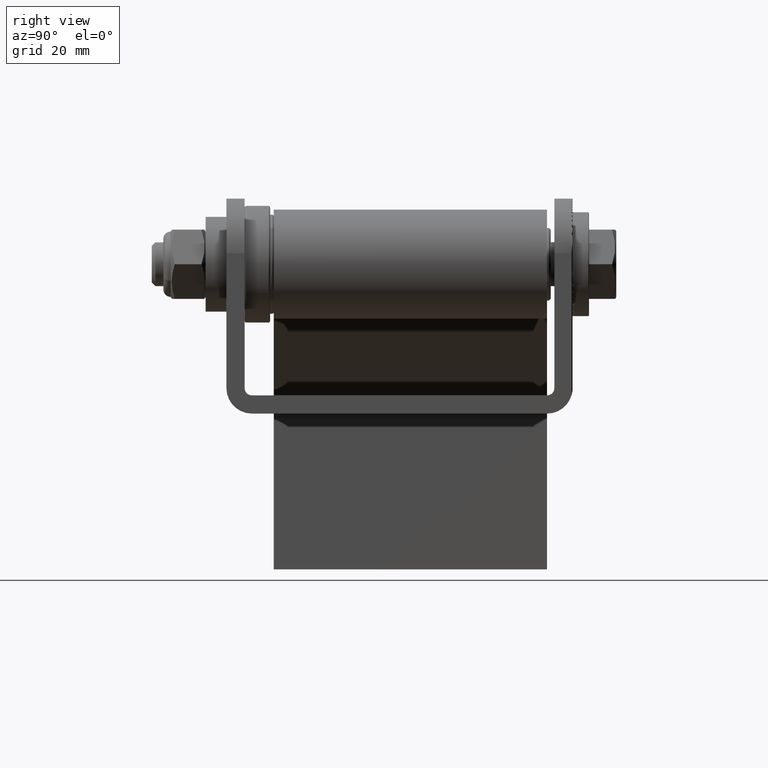
[diagram: clean part render]
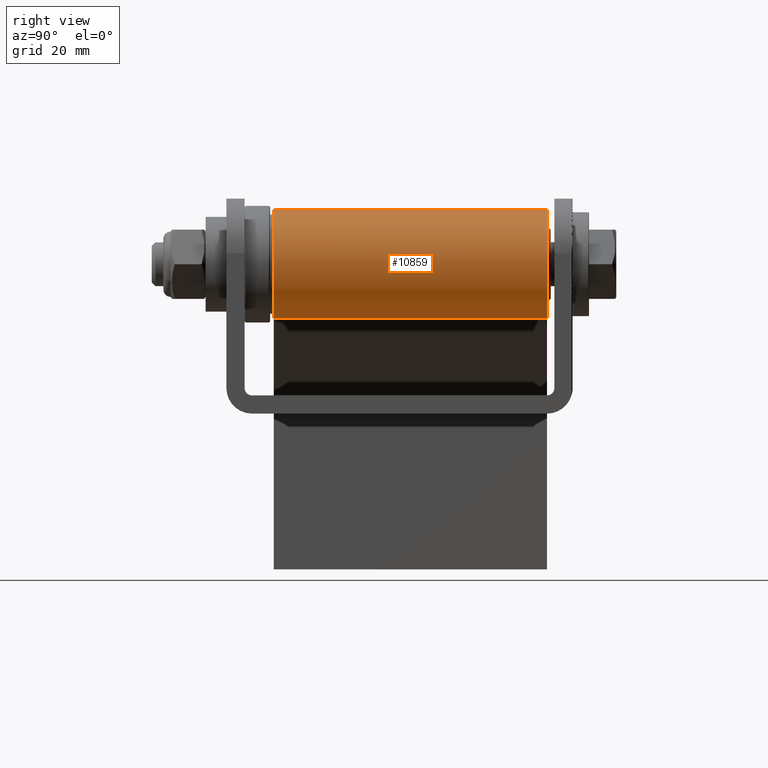
[diagram: same view with one face highlighted and labeled with its STEP entity id]
A machine part, right view. The second image highlights one B-rep face of the part: STEP entity #10859.
In plain terms, the highlighted cylindrical surface (partial cylindrical patch) has radius 15 mm, axis along (0, 1, -0).
Its self-contained STEP definition (entity closure, byte-faithful):
#707 = EDGE_CURVE ( 'NONE', #15682, #6433, #8374, .T. ) ;
#887 = EDGE_CURVE ( 'NONE', #14556, #8426, #24395, .T. ) ;
#983 = ORIENTED_EDGE ( 'NONE', *, *, #26150, .F. ) ;
#3476 = DIRECTION ( 'NONE',  ( 0.0000000000000000000, 0.0000000000000000000, -1.000000000000000000 ) ) ;
#3753 = VECTOR ( 'NONE', #26936, 1000.000000000000000 ) ;
#4143 = FACE_OUTER_BOUND ( 'NONE', #16790, .T. ) ;
#5228 = DIRECTION ( 'NONE',  ( -0.0000000000000000000, -1.000000000000000000, -0.0000000000000000000 ) ) ;
#5236 = DIRECTION ( 'NONE',  ( 0.0000000000000000000, 0.0000000000000000000, 1.000000000000000000 ) ) ;
#6433 = VERTEX_POINT ( 'NONE', #11465 ) ;
#7026 = VECTOR ( 'NONE', #9291, 1000.000000000000000 ) ;
#8221 = CIRCLE ( 'NONE', #26474, 15.00000000000000000 ) ;
#8303 = ORIENTED_EDGE ( 'NONE', *, *, #707, .F. ) ;
#8374 = LINE ( 'NONE', #14491, #3753 ) ;
#8426 = VERTEX_POINT ( 'NONE', #14655 ) ;
#8918 = CARTESIAN_POINT ( 'NONE',  ( 0.0000000000000000000, 75.00000000000000000, 0.0000000000000000000 ) ) ;
#9291 = DIRECTION ( 'NONE',  ( -0.0000000000000000000, -1.000000000000000000, -0.0000000000000000000 ) ) ;
#9459 = DIRECTION ( 'NONE',  ( 0.0000000000000000000, 1.000000000000000000, 0.0000000000000000000 ) ) ;
#10859 = ADVANCED_FACE ( 'NONE', ( #4143 ), #15617, .T. ) ;
#11023 = DIRECTION ( 'NONE',  ( 0.0000000000000000000, 0.0000000000000000000, 1.000000000000000000 ) ) ;
#11465 = CARTESIAN_POINT ( 'NONE',  ( -1.836970198721030400E-015, 0.0000000000000000000, -15.00000000000000000 ) ) ;
#11527 = ORIENTED_EDGE ( 'NONE', *, *, #26309, .T. ) ;
#13233 = CARTESIAN_POINT ( 'NONE',  ( -11.26898398259577000, 75.00000000000000000, -9.899999999999998600 ) ) ;
#13579 = CARTESIAN_POINT ( 'NONE',  ( 0.0000000000000000000, 0.0000000000000000000, 0.0000000000000000000 ) ) ;
#14491 = CARTESIAN_POINT ( 'NONE',  ( -1.836970198721030400E-015, 75.00000000000000000, -15.00000000000000000 ) ) ;
#14556 = VERTEX_POINT ( 'NONE', #20548 ) ;
#14655 = CARTESIAN_POINT ( 'NONE',  ( -11.26898398259577000, 0.0000000000000000000, -9.899999999999998600 ) ) ;
#14861 = ORIENTED_EDGE ( 'NONE', *, *, #887, .T. ) ;
#15617 = CYLINDRICAL_SURFACE ( 'NONE', #18631, 15.00000000000000000 ) ;
#15682 = VERTEX_POINT ( 'NONE', #20976 ) ;
#16790 = EDGE_LOOP ( 'NONE', ( #11527, #8303, #983, #14861 ) ) ;
#17699 = AXIS2_PLACEMENT_3D ( 'NONE', #8918, #19359, #11023 ) ;
#18631 = AXIS2_PLACEMENT_3D ( 'NONE', #24182, #5228, #3476 ) ;
#19359 = DIRECTION ( 'NONE',  ( 0.0000000000000000000, 1.000000000000000000, 0.0000000000000000000 ) ) ;
#20548 = CARTESIAN_POINT ( 'NONE',  ( -11.26898398259577000, 75.00000000000000000, -9.899999999999998600 ) ) ;
#20976 = CARTESIAN_POINT ( 'NONE',  ( -1.836970198721030400E-015, 75.00000000000000000, -15.00000000000000000 ) ) ;
#24182 = CARTESIAN_POINT ( 'NONE',  ( 0.0000000000000000000, 75.00000000000000000, 0.0000000000000000000 ) ) ;
#24395 = LINE ( 'NONE', #13233, #7026 ) ;
#26150 = EDGE_CURVE ( 'NONE', #14556, #15682, #27221, .T. ) ;
#26309 = EDGE_CURVE ( 'NONE', #8426, #6433, #8221, .T. ) ;
#26474 = AXIS2_PLACEMENT_3D ( 'NONE', #13579, #9459, #5236 ) ;
#26936 = DIRECTION ( 'NONE',  ( -0.0000000000000000000, -1.000000000000000000, -0.0000000000000000000 ) ) ;
#27221 = CIRCLE ( 'NONE', #17699, 15.00000000000000000 ) ;